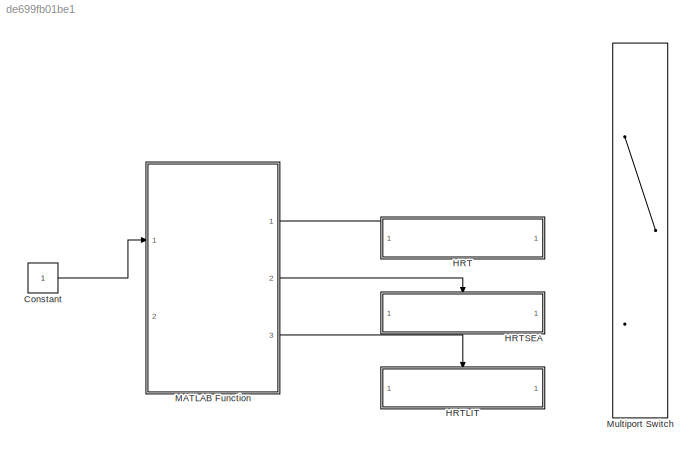
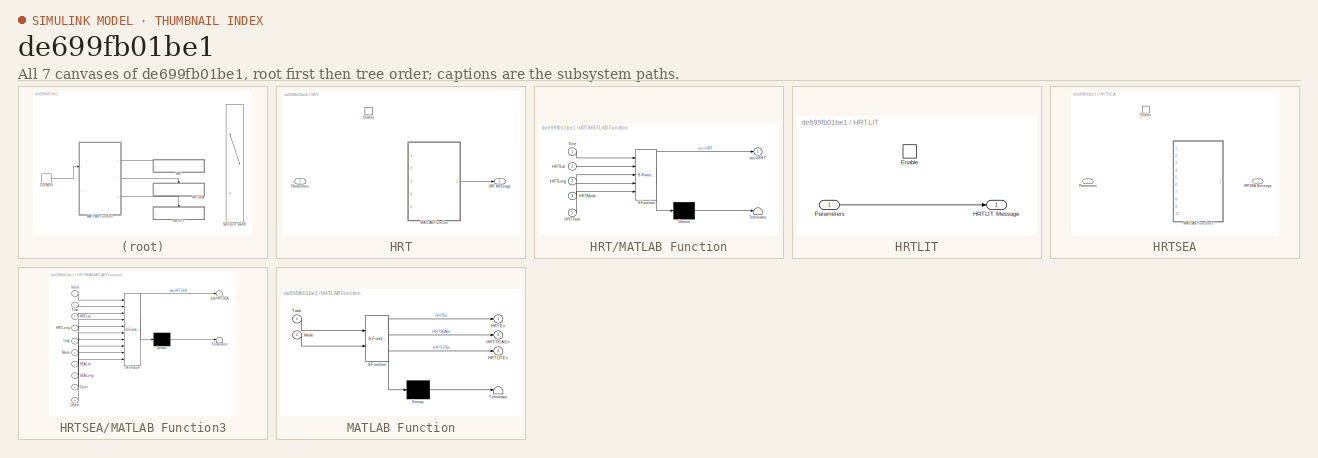
[diagram: thumbnail index - all 7 canvases of the model, root first then tree order]
MODEL slx_de699fb01be1
KIND model
BLOCK [Constant] Constant
BLOCK [SubSystem] HRT
  Ports = [1, 1, 1]
  RequestExecContextInheritance = off
  TreatAsAtomicUnit = on
BLOCK [EnablePort] HRT/Enable
  Ports = []
BLOCK [Outport] HRT/HRT Message
  IconDisplay = Port number
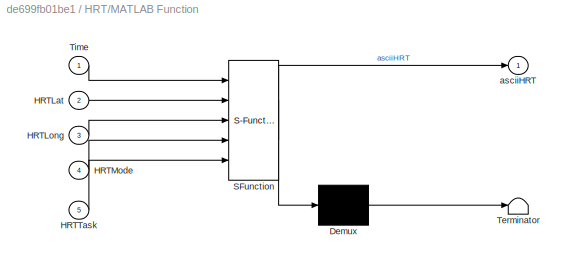
BLOCK [SubSystem] HRT/MATLAB Function
  ErrorFcn = Stateflow.Translate.translate
  PermitHierarchicalResolution = ExplicitOnly
  Ports = [5, 1]
  RequestExecContextInheritance = off
  SFBlockType = MATLAB Function
  TreatAsAtomicUnit = on
BLOCK [Demux] HRT/MATLAB Function/ Demux 
  Outputs = 1
  Ports = [1, 1]
BLOCK [S-Function] HRT/MATLAB Function/ SFunction 
  EnableBusSupport = on
  FunctionName = sf_sfun
  PortCounts = [5 2]
  Ports = [5, 2]
  Tag = Stateflow S-Function Message_Selection 4
BLOCK [Terminator] HRT/MATLAB Function/ Terminator 
BLOCK [Inport] HRT/MATLAB Function/HRTLat
  IconDisplay = Port number
  Port = 2
BLOCK [Inport] HRT/MATLAB Function/HRTLong
  IconDisplay = Port number
  Port = 3
BLOCK [Inport] HRT/MATLAB Function/HRTMode
  IconDisplay = Port number
  Port = 4
BLOCK [Inport] HRT/MATLAB Function/HRTTask
  IconDisplay = Port number
  Port = 5
BLOCK [Inport] HRT/MATLAB Function/Time
  IconDisplay = Port number
BLOCK [Outport] HRT/MATLAB Function/asciiHRT
  IconDisplay = Port number
BLOCK [Inport] HRT/Parameters
  IconDisplay = Port number
BLOCK [SubSystem] HRTLIT
  Ports = [1, 1, 1]
  RequestExecContextInheritance = off
  TreatAsAtomicUnit = on
BLOCK [EnablePort] HRTLIT/Enable
  Ports = []
BLOCK [Outport] HRTLIT/HRTLIT Message
  IconDisplay = Port number
BLOCK [Inport] HRTLIT/Parameters
  IconDisplay = Port number
BLOCK [SubSystem] HRTSEA
  Ports = [1, 1, 1]
  RequestExecContextInheritance = off
  TreatAsAtomicUnit = on
BLOCK [EnablePort] HRTSEA/Enable
  Ports = []
BLOCK [Outport] HRTSEA/HRTSEA Message
  IconDisplay = Port number
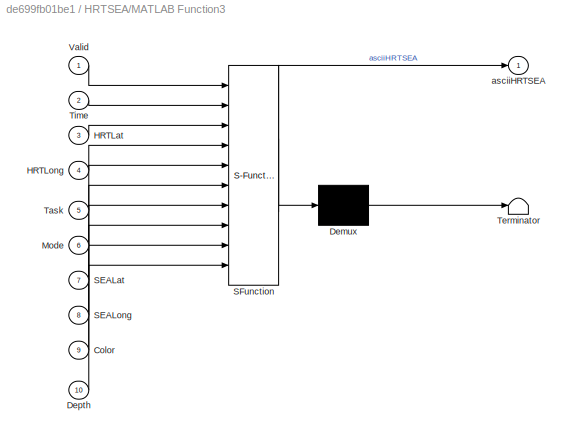
BLOCK [SubSystem] HRTSEA/MATLAB Function3
  ErrorFcn = Stateflow.Translate.translate
  PermitHierarchicalResolution = ExplicitOnly
  Ports = [10, 1]
  RequestExecContextInheritance = off
  SFBlockType = MATLAB Function
  TreatAsAtomicUnit = on
BLOCK [Demux] HRTSEA/MATLAB Function3/ Demux 
  Outputs = 1
  Ports = [1, 1]
BLOCK [S-Function] HRTSEA/MATLAB Function3/ SFunction 
  EnableBusSupport = on
  FunctionName = sf_sfun
  PortCounts = [10 2]
  Ports = [10, 2]
  Tag = Stateflow S-Function Message_Selection 11
BLOCK [Terminator] HRTSEA/MATLAB Function3/ Terminator 
BLOCK [Inport] HRTSEA/MATLAB Function3/Color
  IconDisplay = Port number
  Port = 9
BLOCK [Inport] HRTSEA/MATLAB Function3/Depth
  IconDisplay = Port number
  Port = 10
BLOCK [Inport] HRTSEA/MATLAB Function3/HRTLat
  IconDisplay = Port number
  Port = 3
BLOCK [Inport] HRTSEA/MATLAB Function3/HRTLong
  IconDisplay = Port number
  Port = 4
BLOCK [Inport] HRTSEA/MATLAB Function3/Mode
  IconDisplay = Port number
  Port = 6
BLOCK [Inport] HRTSEA/MATLAB Function3/SEALat
  IconDisplay = Port number
  Port = 7
BLOCK [Inport] HRTSEA/MATLAB Function3/SEALong
  IconDisplay = Port number
  Port = 8
BLOCK [Inport] HRTSEA/MATLAB Function3/Task
  IconDisplay = Port number
  Port = 5
BLOCK [Inport] HRTSEA/MATLAB Function3/Time
  IconDisplay = Port number
  Port = 2
BLOCK [Inport] HRTSEA/MATLAB Function3/Valid
  IconDisplay = Port number
BLOCK [Outport] HRTSEA/MATLAB Function3/asciiHRTSEA
  IconDisplay = Port number
BLOCK [Inport] HRTSEA/Parameters
  IconDisplay = Port number
BLOCK [SubSystem] MATLAB Function
  ErrorFcn = Stateflow.Translate.translate
  PermitHierarchicalResolution = ExplicitOnly
  Ports = [2, 3]
  RequestExecContextInheritance = off
  SFBlockType = MATLAB Function
  TreatAsAtomicUnit = on
BLOCK [Demux] MATLAB Function/ Demux 
  Outputs = 1
  Ports = [1, 1]
BLOCK [S-Function] MATLAB Function/ SFunction 
  EnableBusSupport = off
  FunctionName = sf_sfun
  PortCounts = [2 4]
  Ports = [2, 4]
  Tag = Stateflow S-Function Message_Selection 2
BLOCK [Terminator] MATLAB Function/ Terminator 
BLOCK [Outport] MATLAB Function/HRTEn
  IconDisplay = Port number
BLOCK [Outport] MATLAB Function/HRTLITEn
  IconDisplay = Port number
  Port = 3
BLOCK [Outport] MATLAB Function/HRTSEAEn
  IconDisplay = Port number
  Port = 2
BLOCK [Inport] MATLAB Function/Mode
  IconDisplay = Port number
  Port = 2
BLOCK [Inport] MATLAB Function/Task
  IconDisplay = Port number
BLOCK [MultiPortSwitch] Multiport Switch
  InputSameDT = off
  Ports = [4, 1]
  SaturateOnIntegerOverflow = off
LINE Constant:1 -> MATLAB Function:1
LINE HRT/MATLAB Function:1 -> HRT/HRT Message:1
LINE HRTLIT/Parameters:1 -> HRTLIT/HRTLIT Message:1
LINE MATLAB Function:1 -> HRT:enable
LINE MATLAB Function:2 -> HRTSEA:enable
LINE MATLAB Function:3 -> HRTLIT:enable
